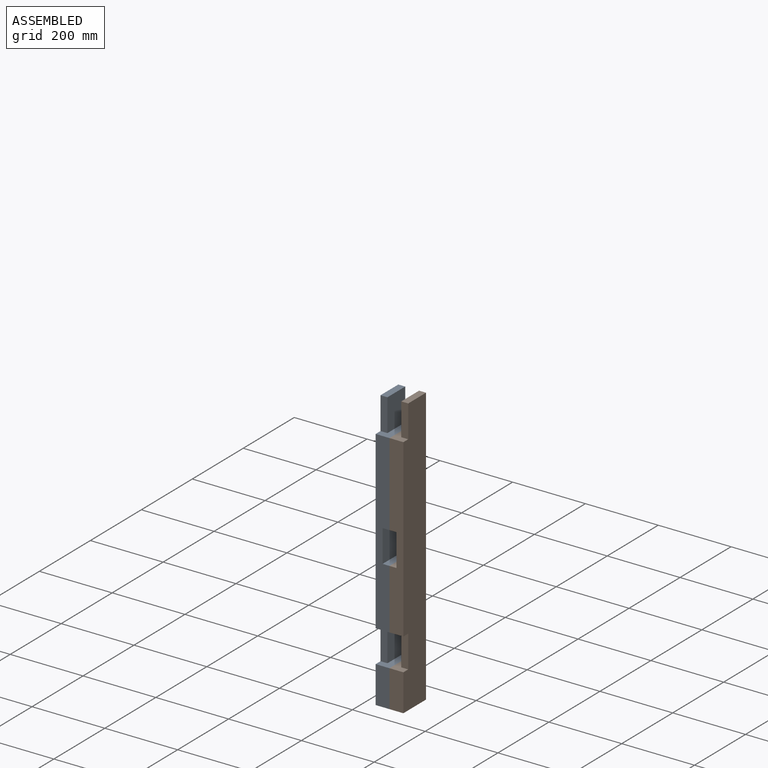
[diagram: assembled view]
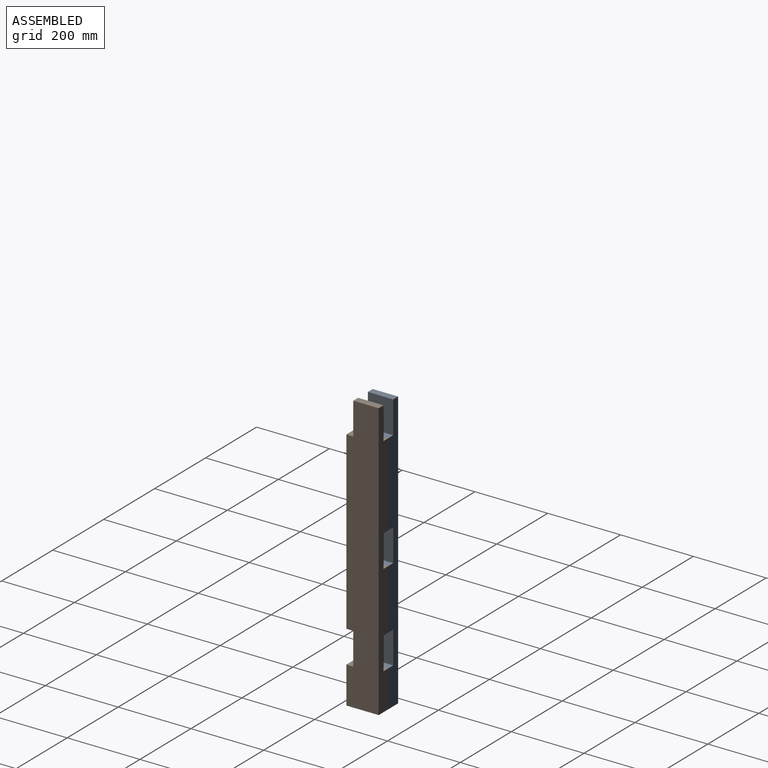
[diagram: assembled view, second angle]
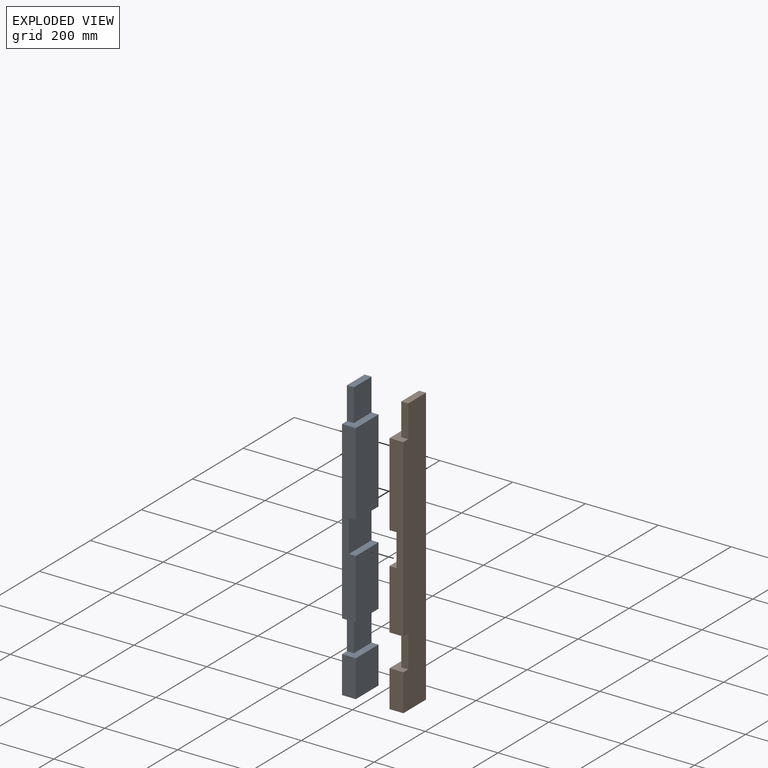
[diagram: exploded view]
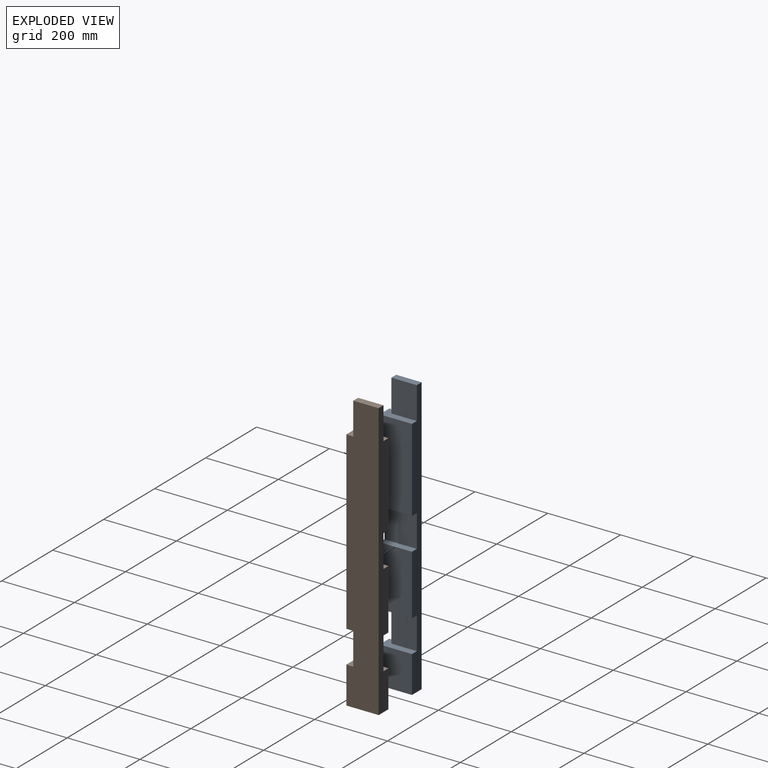
[diagram: exploded view, second angle]
ASSEMBLY  parts=2 mates=3
PART A: 19 faces, bbox 38.1x88.9x762 mm
  f0: plane 482.6x38.1mm, normal (0,-1,0), area 16693.5mm2, adj f3,f5,f7,f10,f12,f14,f15,f16
  f1: plane 69.85x19.05mm, normal (0,0,1), area 1330.6mm2, adj f2,f3,f6,f18
  f2: plane 88.9x69.85mm, normal (1,0,0), area 6209.7mm2, adj f1,f6,f10,f18
  f3: plane 762x88.9mm, normal (-1,0,0), area 64354.7mm2, adj f0,f1,f4,f6,f9,f10,f11,f12
  f4: plane 101.6x38.1mm, normal (0,-1,0), area 3871mm2, adj f3,f8,f9,f11
  f5: plane 228.6x88.9mm, normal (1,0,0), area 20322.5mm2, adj f0,f6,f10,f15
  f6: plane 762x38.1mm, normal (0,1,0), area 23951.6mm2, adj f1,f2,f3,f5,f7,f8,f9,f10
  f7: plane 165.1x88.9mm, normal (1,0,0), area 14677.4mm2, adj f0,f6,f12,f14
  f8: plane 101.6x88.9mm, normal (1,0,0), area 9032.2mm2, adj f4,f6,f9,f11
  f9: plane 88.9x38.1mm, normal (0,0,-1), area 3387.1mm2, adj f3,f4,f6,f8
  f10: plane 88.9x38.1mm, normal (0,0,1), area 2056.4mm2, adj f0,f2,f3,f5,f6,f18
  f11: plane 88.9x38.1mm, normal (0,0,1), area 2056.4mm2, adj f3,f4,f6,f8,f13,f17
  f12: plane 88.9x38.1mm, normal (0,0,-1), area 2056.4mm2, adj f0,f3,f6,f7,f13,f17
  f13: plane 88.9x69.85mm, normal (1,0,0), area 6209.7mm2, adj f6,f11,f12,f17
  f14: plane 88.9x19.05mm, normal (0,0,1), area 1693.5mm2, adj f0,f6,f7,f16
  f15: plane 88.9x19.05mm, normal (0,0,-1), area 1693.5mm2, adj f0,f5,f6,f16
  f16: plane 88.9x88.9mm, normal (1,0,0), area 7903.2mm2, adj f0,f6,f14,f15
  f17: plane 88.9x19.05mm, normal (0,-1,0), area 1693.5mm2, adj f3,f11,f12,f13
  f18: plane 88.9x19.05mm, normal (0,-1,0), area 1693.5mm2, adj f1,f2,f3,f10
PART B: 19 faces, bbox 38.1x88.9x762 mm
  f0: plane 101.6x38.1mm, normal (0,1,0), area 3871mm2, adj f3,f7,f9,f12
  f1: plane 88.9x69.85mm, normal (1,0,0), area 6209.7mm2, adj f6,f12,f13,f18
  f2: plane 482.6x38.1mm, normal (0,1,0), area 16693.5mm2, adj f3,f4,f5,f11,f13,f14,f15,f16
  f3: plane 762x88.9mm, normal (-1,0,0), area 64354.7mm2, adj f0,f2,f6,f8,f9,f11,f12,f13
  f4: plane 228.6x88.9mm, normal (1,0,0), area 20322.5mm2, adj f2,f6,f11,f15
  f5: plane 165.1x88.9mm, normal (1,0,0), area 14677.4mm2, adj f2,f6,f13,f14
  f6: plane 762x38.1mm, normal (0,-1,0), area 23951.6mm2, adj f1,f3,f4,f5,f7,f8,f9,f10
  f7: plane 101.6x88.9mm, normal (1,0,0), area 9032.2mm2, adj f0,f6,f9,f12
  f8: plane 69.85x19.05mm, normal (0,0,1), area 1330.6mm2, adj f3,f6,f10,f17
  f9: plane 88.9x38.1mm, normal (0,0,-1), area 3387.1mm2, adj f0,f3,f6,f7
  f10: plane 88.9x69.85mm, normal (1,0,0), area 6209.7mm2, adj f6,f8,f11,f17
  f11: plane 88.9x38.1mm, normal (0,0,1), area 2056.4mm2, adj f2,f3,f4,f6,f10,f17
  f12: plane 88.9x38.1mm, normal (0,0,1), area 2056.4mm2, adj f0,f1,f3,f6,f7,f18
  f13: plane 88.9x38.1mm, normal (0,0,-1), area 2056.4mm2, adj f1,f2,f3,f5,f6,f18
  f14: plane 88.9x19.05mm, normal (0,0,1), area 1693.5mm2, adj f2,f5,f6,f16
  f15: plane 88.9x19.05mm, normal (0,0,-1), area 1693.5mm2, adj f2,f4,f6,f16
  f16: plane 88.9x88.9mm, normal (1,0,0), area 7903.2mm2, adj f2,f6,f14,f15
  f17: plane 88.9x19.05mm, normal (0,1,0), area 1693.5mm2, adj f3,f8,f10,f11
  f18: plane 88.9x19.05mm, normal (0,1,0), area 1693.5mm2, adj f1,f3,f12,f13
PLACE A t=(-357.2,30.28,-44.85)mm
PLACE B rot(axis=(0,0,-1),180deg) t=(-281,119.18,-44.85)mm
MATE planar A.f9 <-> B.f9  axis (0,0,-1) through (-338.15,74.73,-44.85)mm
MATE planar A.f8 <-> B.f7  axis (1,0,0) through (-319.1,74.73,5.95)mm
MATE planar B.f0 <-> A.f4  axis (0,-1,0) through (-300.05,30.28,5.95)mm
